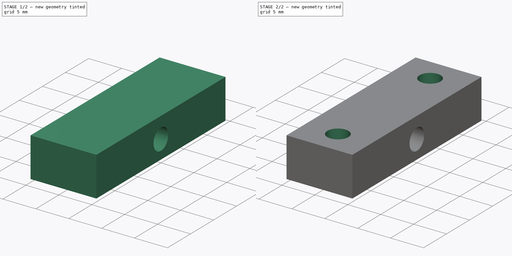
[diagram: build sequence overview — one tinted view per stage of 2, left to right]
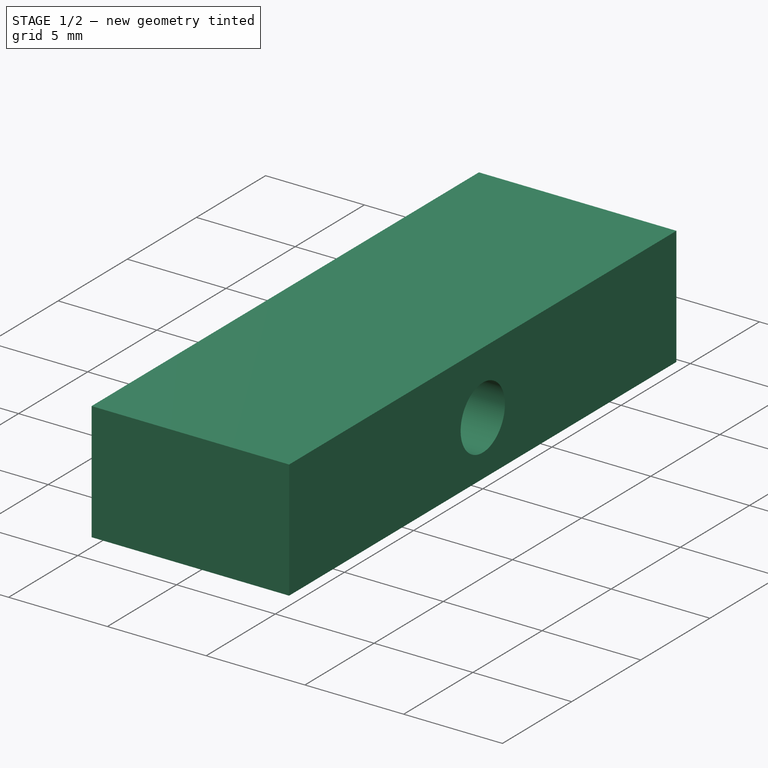
[diagram: stage 1 of 2 — iso view after this stage's code; geometry added in this stage tinted green]
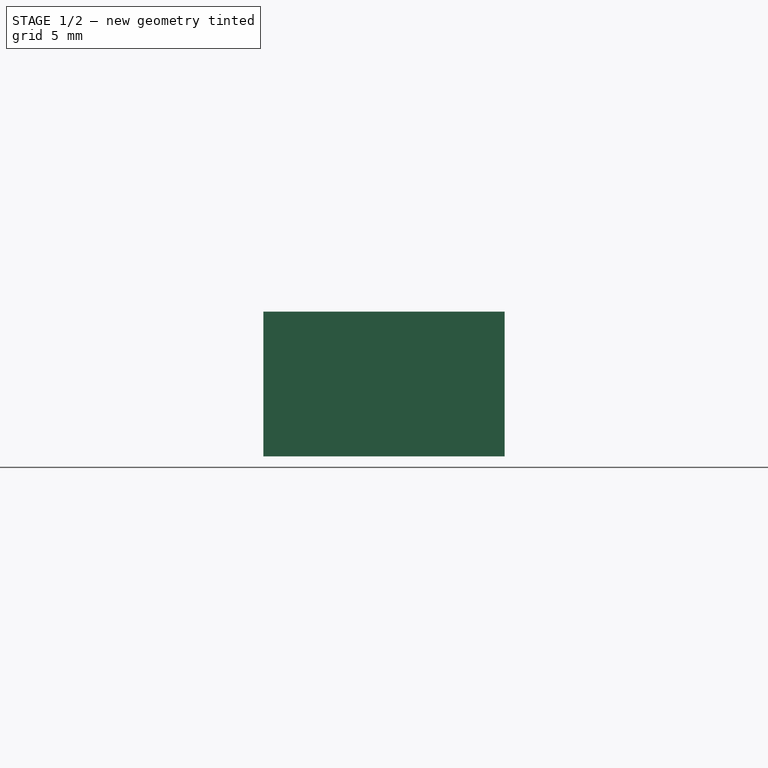
[diagram: stage 1 of 2 — front view after this stage's code; geometry added in this stage tinted green]
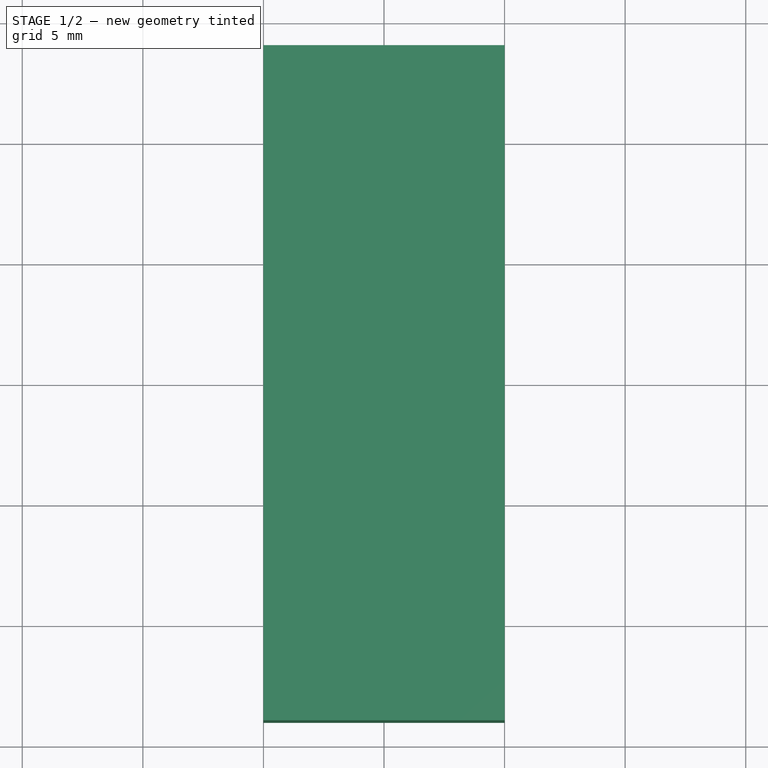
[diagram: stage 1 of 2 — top view after this stage's code; geometry added in this stage tinted green]
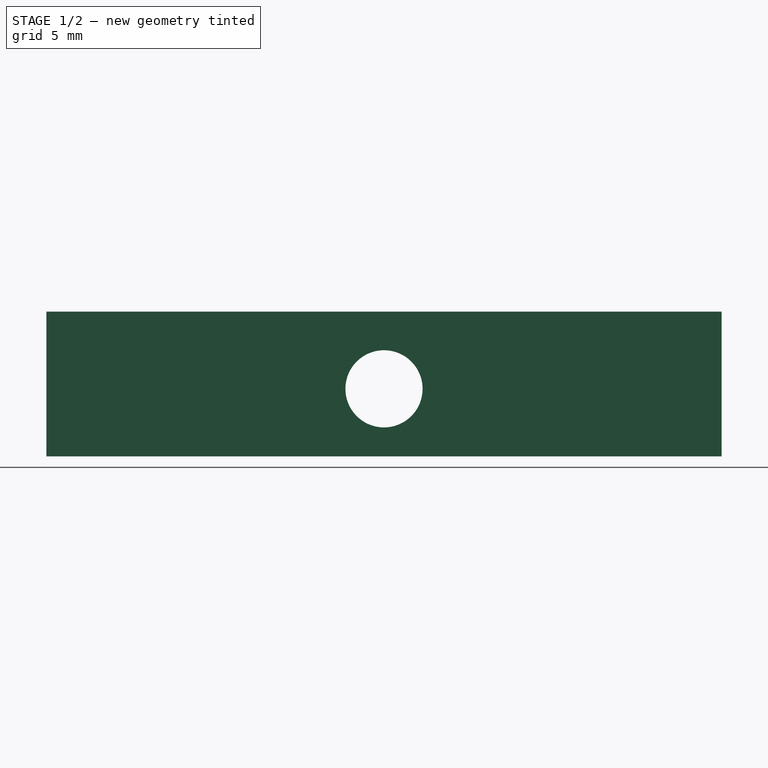
[diagram: stage 1 of 2 — right view after this stage's code; geometry added in this stage tinted green]
FCSTD DOCUMENT  (FreeCAD 0.18R14090 (Git))
Label: BedBeltClamp3_Alt2
License: All rights reserved
LicenseURL: http://en.wikipedia.org/wiki/All_rights_reserved
objects: Sketcher::SketchObject×3, PartDesign::Pocket×2, PartDesign::Pad×1, PartDesign::Body×1, App::Part×1
note: 10 computed .brp shape members not serialized (recipe doc carries the construction recipe); baked Part::Feature solids carry a one-line shape summary decoded from their .brp

FEATURE [Sketcher::SketchObject] Sketch  label="BT_BaseSketch"
  MapMode = 5
  Placement = pos=(0,0,0) rot=(0.57735,0.57735,0.57735;2.0944rad)
  Support = -> [YZ_Plane003]
  sketch-geometry (5):
    g0: LineSegment StartX=-14 StartY=0 StartZ=0 EndX=14 EndY=0 EndZ=0
    g1: LineSegment StartX=14 StartY=0 StartZ=0 EndX=14 EndY=6 EndZ=0
    g2: LineSegment StartX=14 StartY=6 StartZ=0 EndX=-14 EndY=6 EndZ=0
    g3: LineSegment StartX=-14 StartY=6 StartZ=0 EndX=-14 EndY=0 EndZ=0
    g4: Circle CenterX=0 CenterY=2.8 CenterZ=0 NormalX=0 NormalY=0 NormalZ=1 AngleXU=0 Radius=1.6
  constraints (14):
    c: Coincident(g0,g1)
    c: Coincident(g1,g2)
    c: Coincident(g2,g3)
    c: Coincident(g3,g0)
    c: Horizontal(g2)
    c: Vertical(g1)
    c: Vertical(g3)
    c: PointOnObject(g0,g-1)
    c: Symmetric(g0,g0,g-2)
    c: Distance(g2) = 28
    c: Distance(g1) = 6
    c: PointOnObject(g4,g-2)
    c: Distance(g4,g0) = 2.8
    c: Radius(g4) = 1.6
FEATURE [PartDesign::Pad] Pad  label="BT_BasePad"
  Length = 10
  Length2 = 100
  Midplane = true
  Placement = pos=(0,0,0) rot=(0.57735,0.57735,0.57735;2.0944rad)
  Profile = -> Sketch
  Type = 0
FEATURE [Sketcher::SketchObject] Sketch006  label="BT_NutSketch"
  ExternalGeometry = -> [Sketch]
  MapMode = 5
  Placement = pos=(0,0,0) rot=(0.57735,0.57735,0.57735;2.0944rad)
  Support = -> [YZ_Plane003]
  sketch-geometry (7):
    g0: LineSegment StartX=1.61658 StartY=0 StartZ=0 EndX=3.23316 EndY=2.8 EndZ=0
    g1: LineSegment StartX=3.23316 StartY=2.8 StartZ=0 EndX=1.61658 EndY=5.6 EndZ=0
    g2: LineSegment StartX=1.61658 StartY=5.6 StartZ=0 EndX=-1.61658 EndY=5.6 EndZ=0
    g3: LineSegment StartX=-1.61658 StartY=5.6 StartZ=0 EndX=-3.23316 EndY=2.8 EndZ=0
    g4: LineSegment StartX=-3.23316 StartY=2.8 StartZ=0 EndX=-1.61658 EndY=0 EndZ=0
    g5: LineSegment StartX=-1.61658 StartY=0 StartZ=0 EndX=1.61658 EndY=0 EndZ=0
    g6: Circle [constr] CenterX=0 CenterY=2.8 CenterZ=0 NormalX=0 NormalY=0 NormalZ=1 AngleXU=0 Radius=3.23316
  constraints (16):
    c: Coincident(g0,g1)
    c: Coincident(g1,g2)
    c: Coincident(g2,g3)
    c: Coincident(g3,g4)
    c: Coincident(g4,g5)
    c: Coincident(g5,g0)
    c: Equal(g0, g1-g5) x5
    c: PointOnObject(g0,g6)
    c: PointOnObject(g1,g6)
    c: PointOnObject(g2,g6)
    c: PointOnObject(g3,g6)
    c: PointOnObject(g4,g6)
    c: PointOnObject(g5,g6)
    c: Coincident(g6,g-3)
    c: Horizontal(g5)
    c: Distance(g1,g0) = 5.6
FEATURE [PartDesign::Pocket] Pocket  label="BT_NutPocket"
  BaseFeature = -> Pad
  Length = 5
  Length2 = 100
  Placement = pos=(0,0,0) rot=(0.57735,0.57735,0.57735;2.0944rad)
  Profile = -> Sketch006
  Type = 1
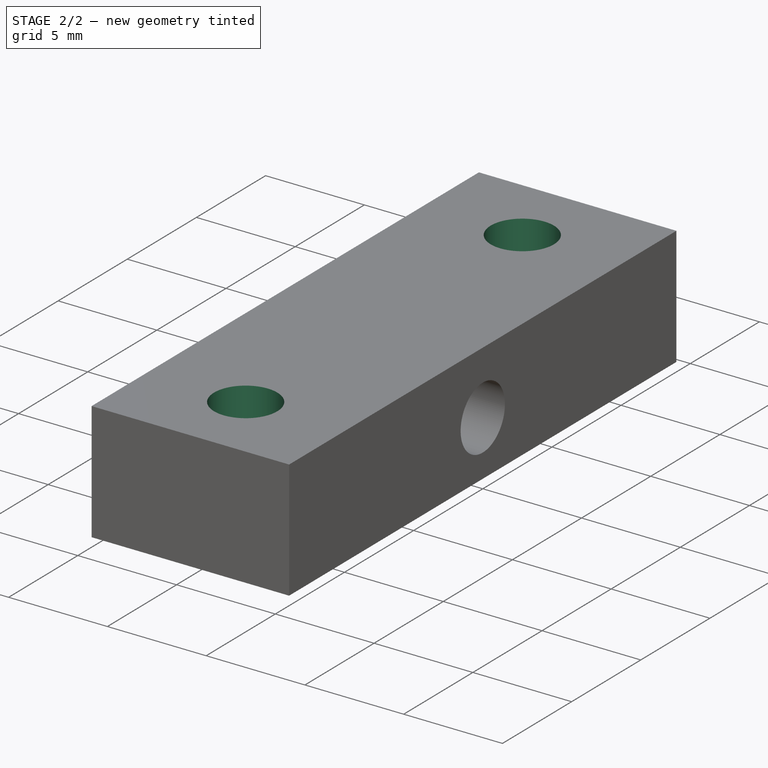
[diagram: stage 2 of 2 — iso view after this stage's code; geometry added in this stage tinted green]
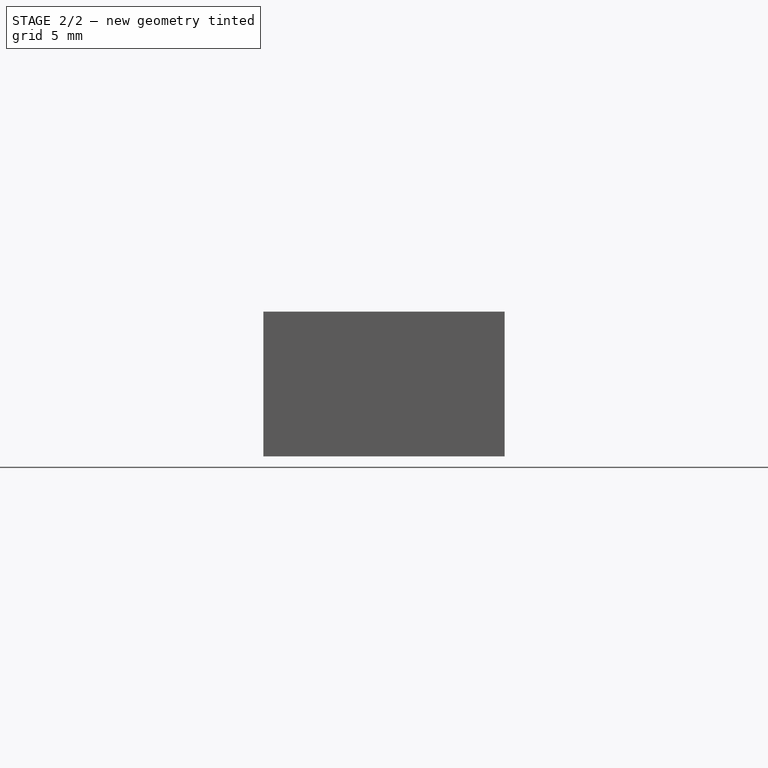
[diagram: stage 2 of 2 — front view after this stage's code; geometry added in this stage tinted green]
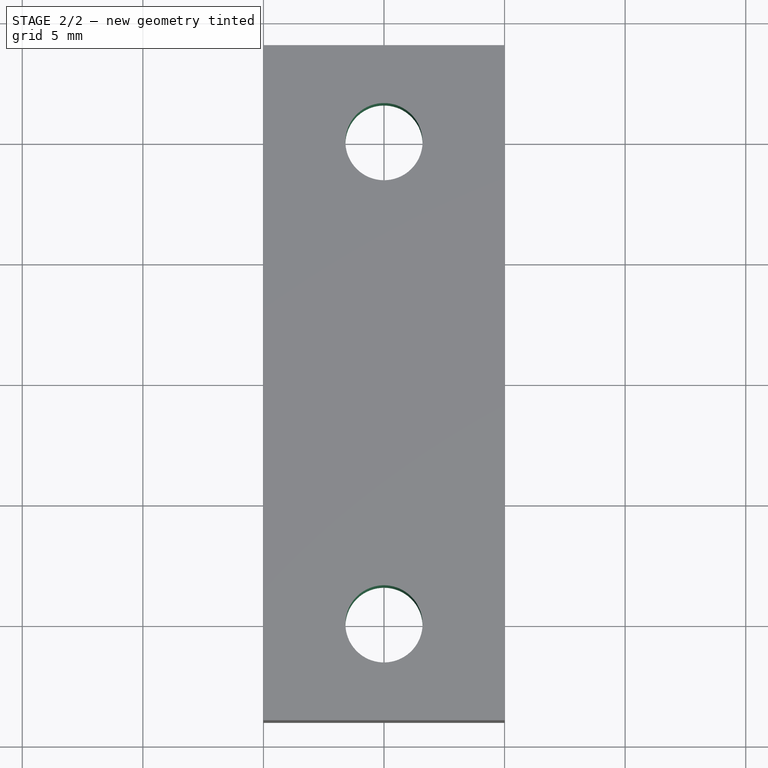
[diagram: stage 2 of 2 — top view after this stage's code; geometry added in this stage tinted green]
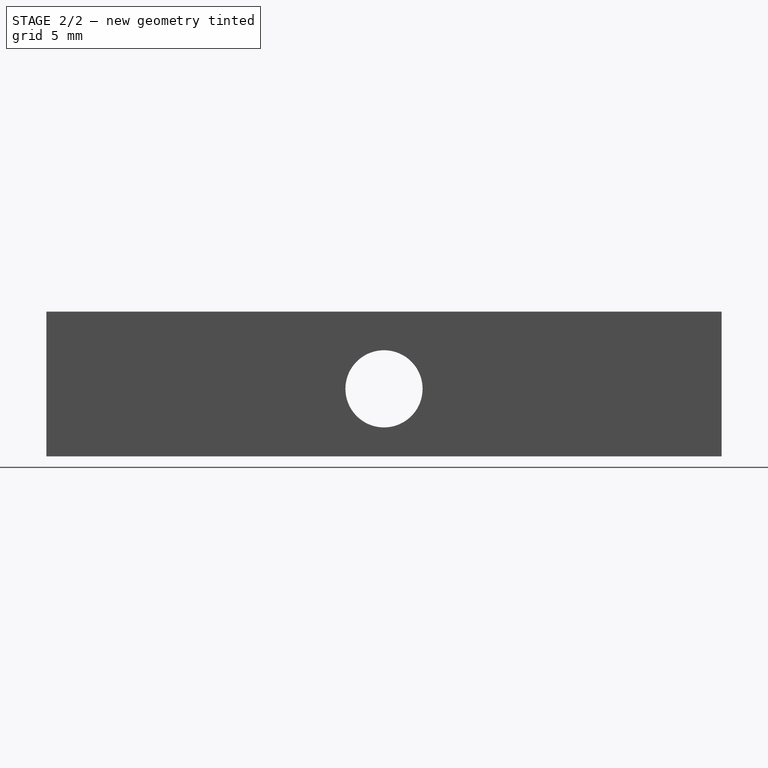
[diagram: stage 2 of 2 — right view after this stage's code; geometry added in this stage tinted green]
FEATURE [Sketcher::SketchObject] Sketch007  label="BT_ScrewsSketch"
  MapMode = 5
  Support = -> [XY_Plane003]
  sketch-geometry (2):
    g0: Circle CenterX=0 CenterY=10 CenterZ=0 NormalX=0 NormalY=0 NormalZ=1 AngleXU=0 Radius=1.6
    g1: Circle CenterX=0 CenterY=-10 CenterZ=0 NormalX=0 NormalY=0 NormalZ=1 AngleXU=0 Radius=1.6
  constraints (5):
    c: PointOnObject(g0,g-2)
    c: Equal(g0,g1)
    c: Symmetric(g0,g1,g-1)
    c: Distance(g0,g1) = 20
    c: Radius(g0) = 1.6
FEATURE [PartDesign::Pocket] Pocket001  label="BT_ScrewsPocket"
  BaseFeature = -> Pocket
  Length = 5
  Length2 = 100
  Placement = pos=(0,0,0) rot=(0.57735,0.57735,0.57735;2.0944rad)
  Profile = -> Sketch007
  Reversed = true
  Type = 1
FEATURE [PartDesign::Body] Body002  label="BedTensionerBody"
  Group = -> [Sketch,Pad,Sketch006,Pocket,Sketch007,Pocket001]
  Origin = -> Origin003
  Placement = pos=(0,0,8) rot=(0,0,1;0rad)
  Tip = -> Pocket001
FEATURE [App::Part] Part  label="ClampPart"
  Group = -> [Body002]
  License = CC BY 3.0
  LicenseURL = http://creativecommons.org/licenses/by/3.0/
  Origin = -> Origin
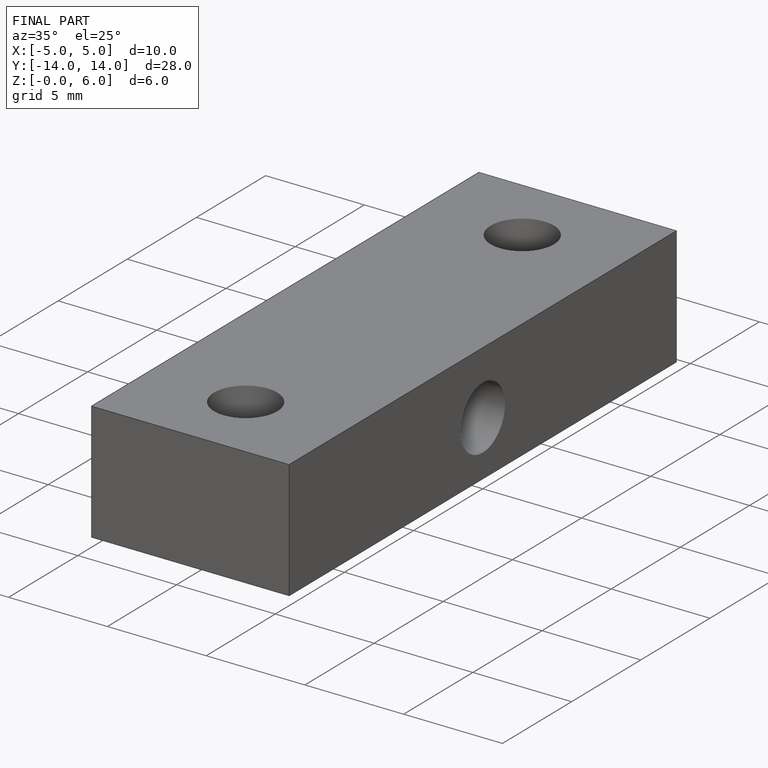
[diagram: finished part — iso view with bounding-box wireframe]
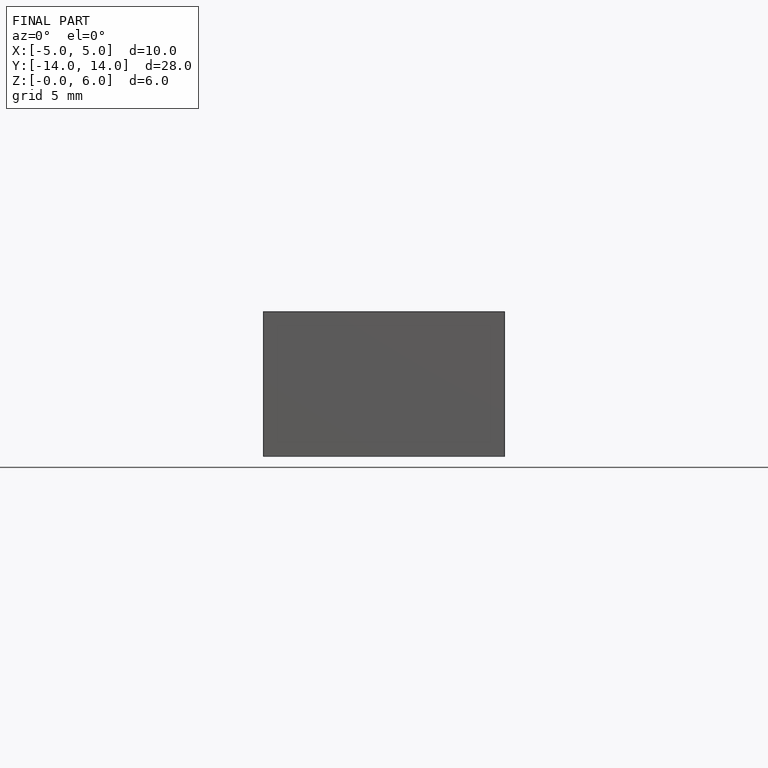
[diagram: finished part — front view with bounding-box wireframe]
